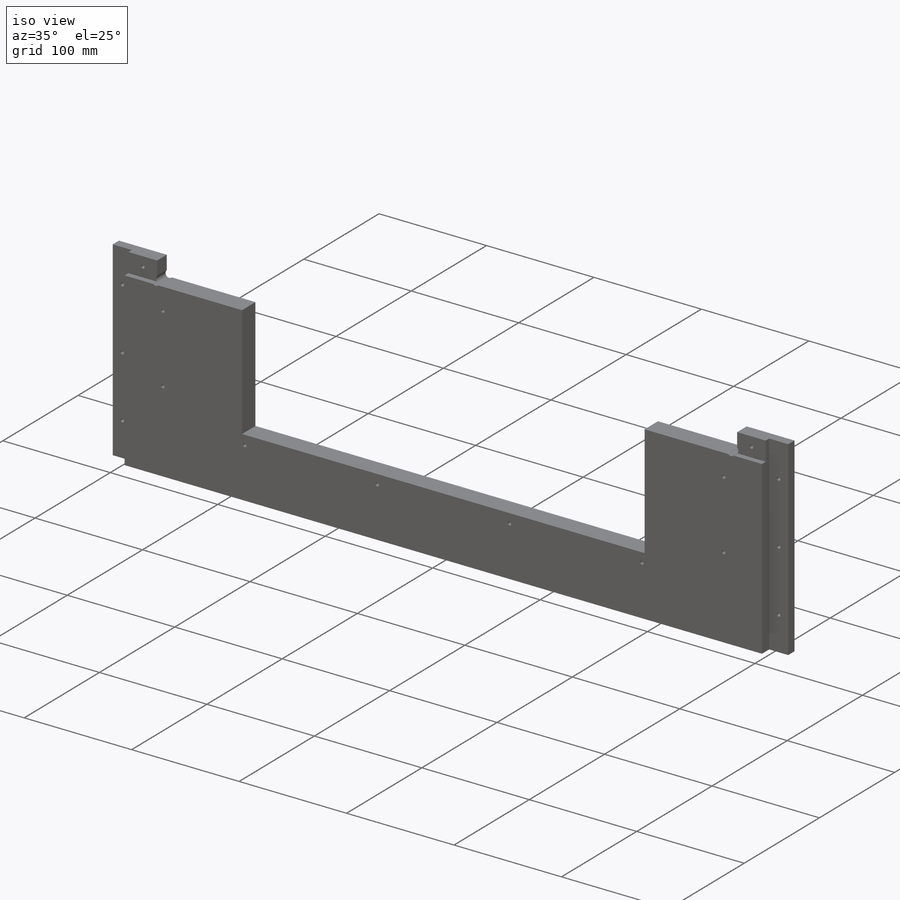
[diagram: iso view]
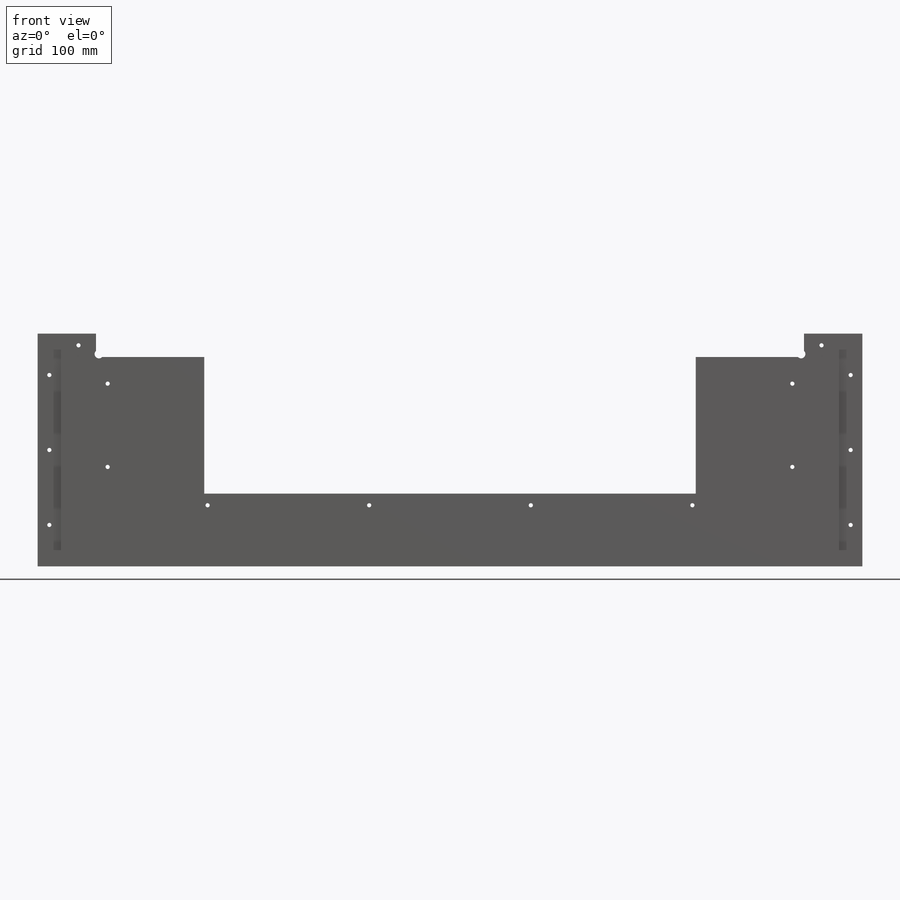
[diagram: front view]
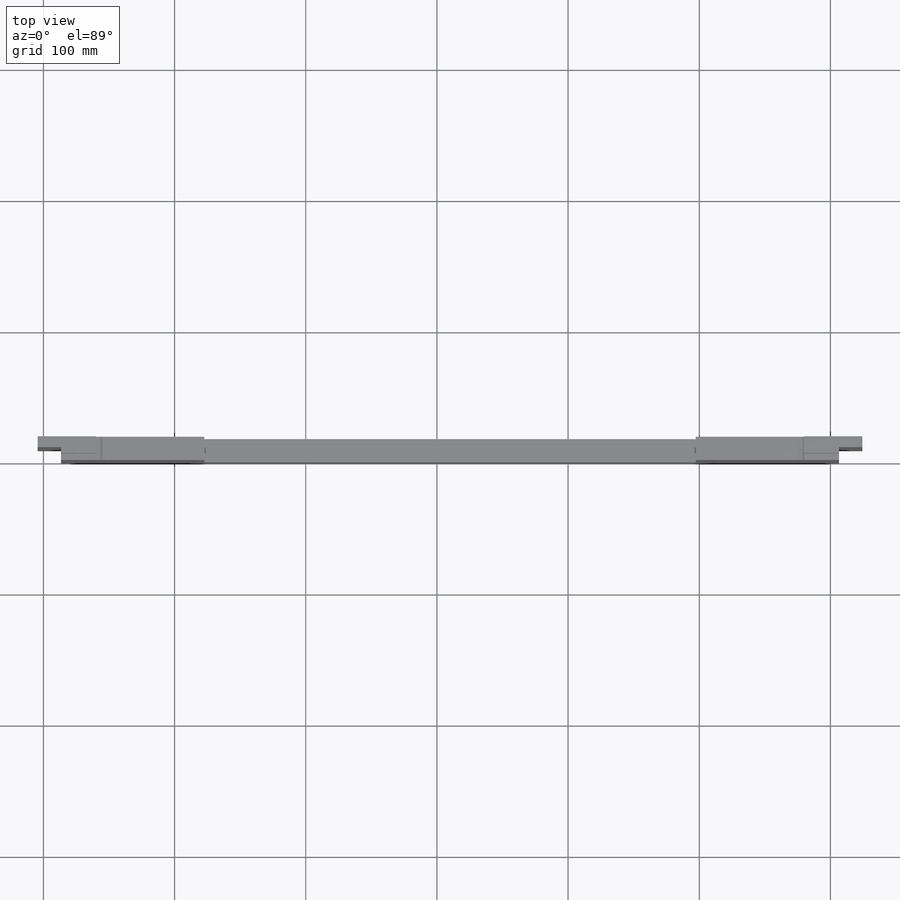
[diagram: top view]
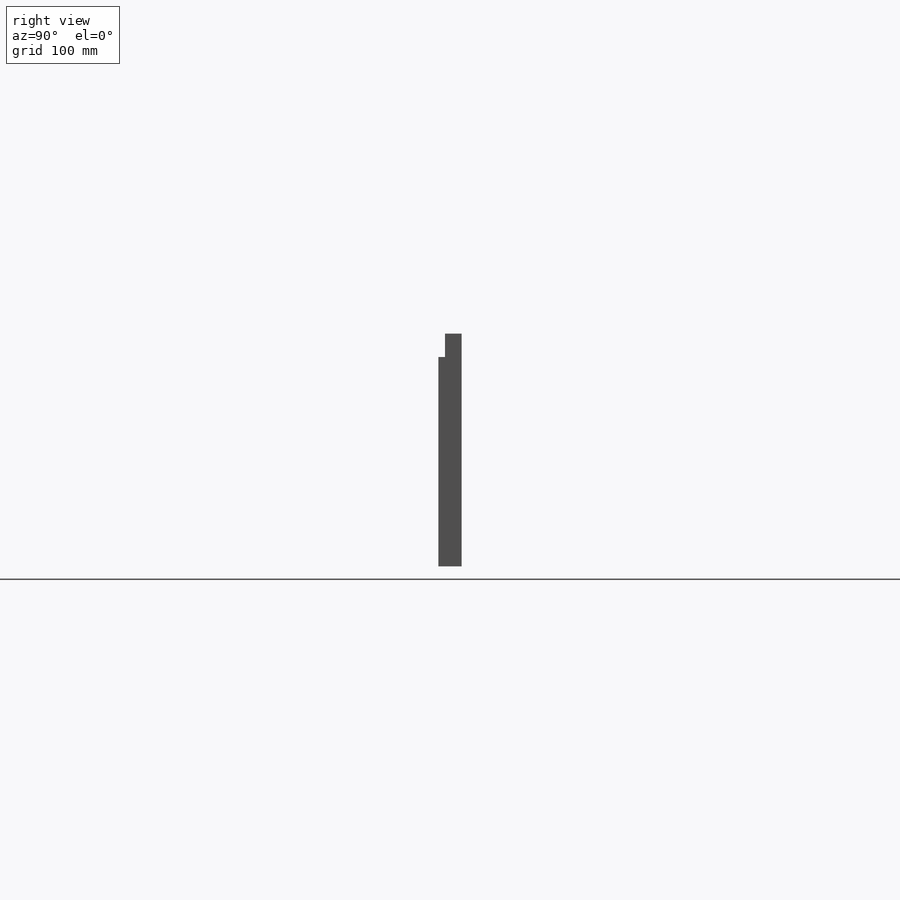
[diagram: right view]
SOLIDWORKS PART (.sldprt)
format: sldprt  version: not decoded by parser v0  size: 2,364,416 bytes
history: native  units: mm
features: sketch x5, cut_extrude x3, material x1, extrude x1 + 1 further entry (+15 scaffold rows collapsed)
feature tree (26):
  scaffold x15  (default folders/planes/origin — collapsed)
  material  "Pine"
  "Design Table"
  sketch  "Sketch1"
  sketch  "CabCapOutline"  dims[c1.D1=17.78mm c1.D2=104.14mm c1.D3=17.78mm c1.CabBack_Thickness=17.78mm c1.CabCap_Width=628.65mm c2.D3=171.45mm c2.D5=44.45mm c2.D6=82.55mm c2.D7=304.8mm]
  extrude  "CabCapOutline_Thickness"  Depth=17.78mm
  sketch  "Sketch3"
  cut_extrude  "CapBackLedge_Depth"  Depth=5.08mm
  sketch  "CabSideLedgeCuts"  dims[CabSideRight_Thickness=17.78mm CabSideLeft_Thickness=17.78mm]
  cut_extrude  "CabSideLedge_Depth"  Depth=9.525mm
  sketch  "Sketch5"  dims[c1.D1=~6.269872mm c1.D5=~5.214988mm c2.D1=3.175mm c3.D1=45.0deg c4.D1=~2.245064mm c5.D1=45.0deg c5.D2=3.175mm c5.D3=3.175mm c6.D3=135.0deg c7.D3=~2.245064mm c8.D3=45.0deg c8.D4=3.175mm c8.D5=8.89mm c8.D6=123.19mm c8.D7=63.5mm c8.D8=73.66mm c8.D9=63.5mm c8.D10=73.66mm c8.D11=57.15mm c8.D12=57.15mm c8.D13=57.15mm c8.D14=57.15mm]
  cut_extrude  "Cut-Extrude3"  [1 undecoded]
decode coverage: 6 of 9 modeling features carry decoded parameters; 1 rows unclassified (native names shown)
note: ~ marks probable driven/reference dimensions
note: 1 parameter value undecoded
note: suppression state not decoded; provenance and decode notes live in map.json
